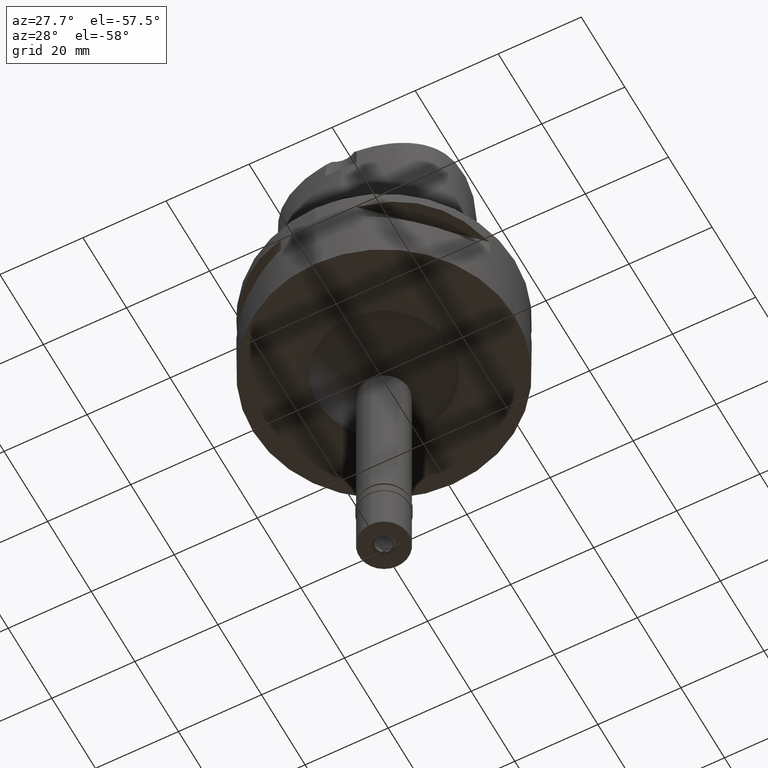
[diagram: clean part render]
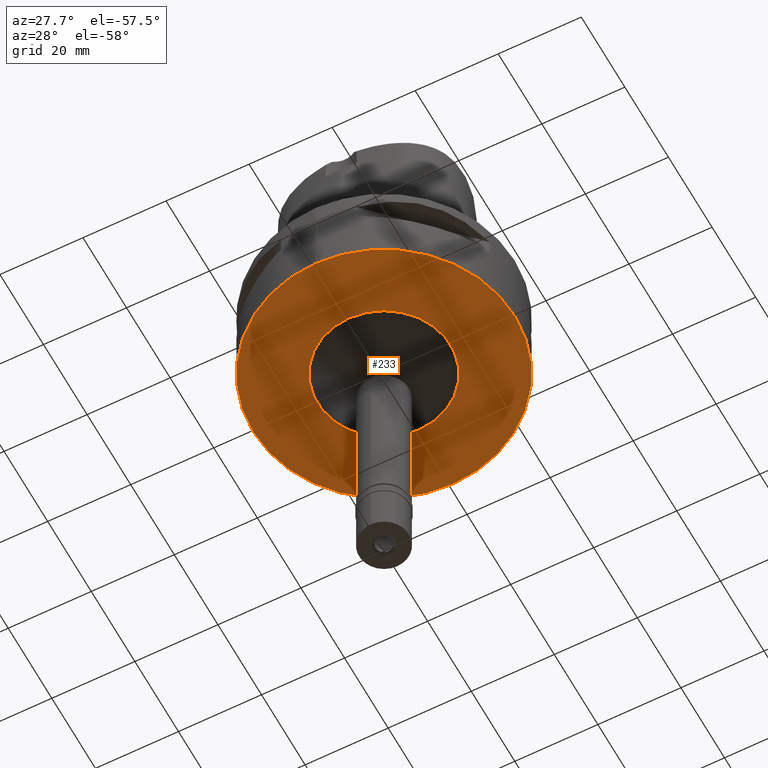
[diagram: same view with one face highlighted and labeled with its STEP entity id]
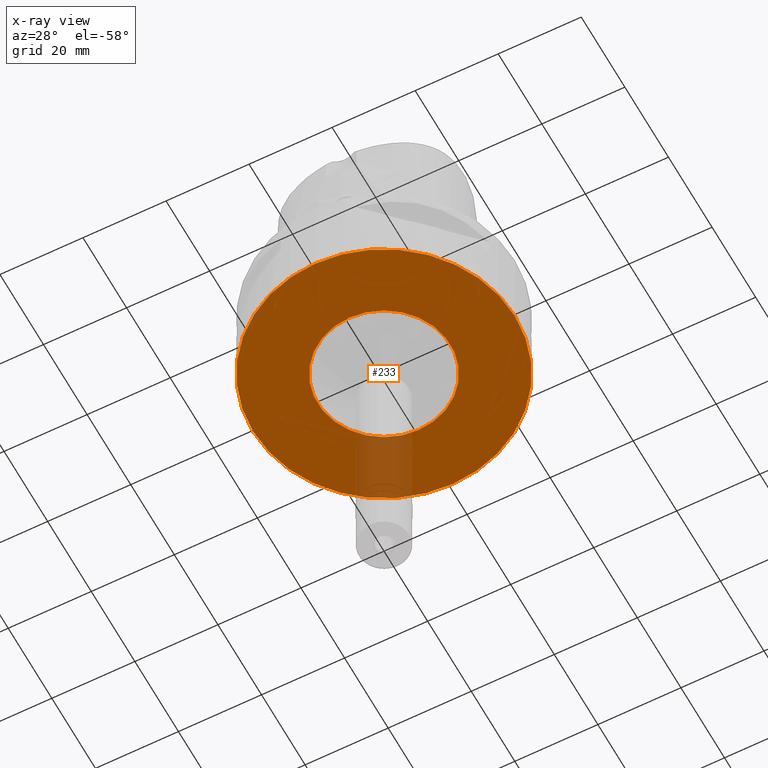
[diagram: x-ray of the same camera — body ghosted, the highlighted face saturated]
A machine part, auxiliary view. The second image highlights one B-rep face of the part: STEP entity #233.
The next image is the same camera in x-ray: the body ghosted, the highlighted face saturated — about 8% of this face is hidden behind the body in this view.
In plain terms, the highlighted planar face has unit normal (0, 0, -1).
Its self-contained STEP definition (entity closure, byte-faithful):
#82 = DIRECTION ( 'NONE',  ( 0.0000000000000000000, -1.000000000000000000, 0.0000000000000000000 ) ) ;
#232 = VERTEX_POINT ( 'NONE', #1528 ) ;
#233 = ADVANCED_FACE ( 'NONE', ( #1957, #3083 ), #3877, .T. ) ;
#278 = CARTESIAN_POINT ( 'NONE',  ( 0.0000000000000000000, 0.0000000000000000000, -22.00000000000000000 ) ) ;
#442 = DIRECTION ( 'NONE',  ( 0.0000000000000000000, 0.0000000000000000000, 1.000000000000000000 ) ) ;
#589 = EDGE_LOOP ( 'NONE', ( #3614, #2590 ) ) ;
#643 = VERTEX_POINT ( 'NONE', #2528 ) ;
#726 = EDGE_CURVE ( 'NONE', #3134, #643, #4745, .T. ) ;
#904 = CARTESIAN_POINT ( 'NONE',  ( 0.0000000000000000000, 16.00000000000000000, -22.00000000000000000 ) ) ;
#960 = CARTESIAN_POINT ( 'NONE',  ( 0.0000000000000000000, -31.50000000000000000, -22.00000000000000000 ) ) ;
#1011 = DIRECTION ( 'NONE',  ( 0.0000000000000000000, 0.0000000000000000000, 1.000000000000000000 ) ) ;
#1021 = DIRECTION ( 'NONE',  ( 0.0000000000000000000, 0.0000000000000000000, -1.000000000000000000 ) ) ;
#1101 = AXIS2_PLACEMENT_3D ( 'NONE', #278, #1021, #2880 ) ;
#1245 = AXIS2_PLACEMENT_3D ( 'NONE', #3594, #1011, #2050 ) ;
#1250 = EDGE_CURVE ( 'NONE', #643, #3134, #1404, .T. ) ;
#1255 = AXIS2_PLACEMENT_3D ( 'NONE', #4806, #4782, #4731 ) ;
#1281 = ORIENTED_EDGE ( 'NONE', *, *, #1982, .F. ) ;
#1404 = CIRCLE ( 'NONE', #1245, 31.50000000000000000 ) ;
#1528 = CARTESIAN_POINT ( 'NONE',  ( 0.0000000000000000000, -16.00000000000000000, -22.00000000000000000 ) ) ;
#1565 = CARTESIAN_POINT ( 'NONE',  ( 0.0000000000000000000, 0.0000000000000000000, -22.00000000000000000 ) ) ;
#1867 = DIRECTION ( 'NONE',  ( 0.0000000000000000000, 0.0000000000000000000, -1.000000000000000000 ) ) ;
#1886 = CIRCLE ( 'NONE', #1101, 16.00000000000000000 ) ;
#1929 = DIRECTION ( 'NONE',  ( 0.0000000000000000000, -1.000000000000000000, 0.0000000000000000000 ) ) ;
#1957 = FACE_OUTER_BOUND ( 'NONE', #589, .T. ) ;
#1982 = EDGE_CURVE ( 'NONE', #4742, #232, #1886, .T. ) ;
#2045 = CIRCLE ( 'NONE', #1255, 16.00000000000000000 ) ;
#2050 = DIRECTION ( 'NONE',  ( 0.0000000000000000000, 1.000000000000000000, 0.0000000000000000000 ) ) ;
#2528 = CARTESIAN_POINT ( 'NONE',  ( 0.0000000000000000000, 31.50000000000000000, -22.00000000000000000 ) ) ;
#2590 = ORIENTED_EDGE ( 'NONE', *, *, #726, .F. ) ;
#2880 = DIRECTION ( 'NONE',  ( 0.0000000000000000000, 1.000000000000000000, 0.0000000000000000000 ) ) ;
#2993 = AXIS2_PLACEMENT_3D ( 'NONE', #1565, #1867, #82 ) ;
#3083 = FACE_BOUND ( 'NONE', #3123, .T. ) ;
#3092 = EDGE_CURVE ( 'NONE', #232, #4742, #2045, .T. ) ;
#3101 = CARTESIAN_POINT ( 'NONE',  ( 0.0000000000000000000, 1.277306611510999858E-14, -22.00000000000000000 ) ) ;
#3123 = EDGE_LOOP ( 'NONE', ( #1281, #3146 ) ) ;
#3134 = VERTEX_POINT ( 'NONE', #960 ) ;
#3146 = ORIENTED_EDGE ( 'NONE', *, *, #3092, .F. ) ;
#3461 = AXIS2_PLACEMENT_3D ( 'NONE', #3101, #442, #1929 ) ;
#3594 = CARTESIAN_POINT ( 'NONE',  ( 0.0000000000000000000, 1.277306611510999858E-14, -22.00000000000000000 ) ) ;
#3614 = ORIENTED_EDGE ( 'NONE', *, *, #1250, .F. ) ;
#3877 = PLANE ( 'NONE',  #2993 ) ;
#4731 = DIRECTION ( 'NONE',  ( 0.0000000000000000000, -1.000000000000000000, 0.0000000000000000000 ) ) ;
#4742 = VERTEX_POINT ( 'NONE', #904 ) ;
#4745 = CIRCLE ( 'NONE', #3461, 31.50000000000000000 ) ;
#4782 = DIRECTION ( 'NONE',  ( 0.0000000000000000000, 0.0000000000000000000, -1.000000000000000000 ) ) ;
#4806 = CARTESIAN_POINT ( 'NONE',  ( 0.0000000000000000000, 0.0000000000000000000, -22.00000000000000000 ) ) ;